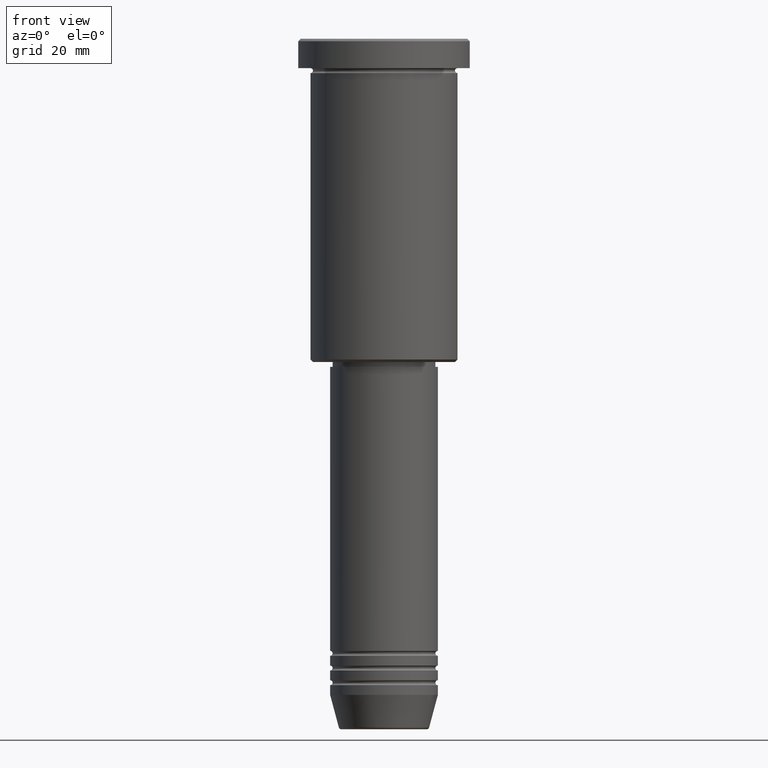
[diagram: clean part render]
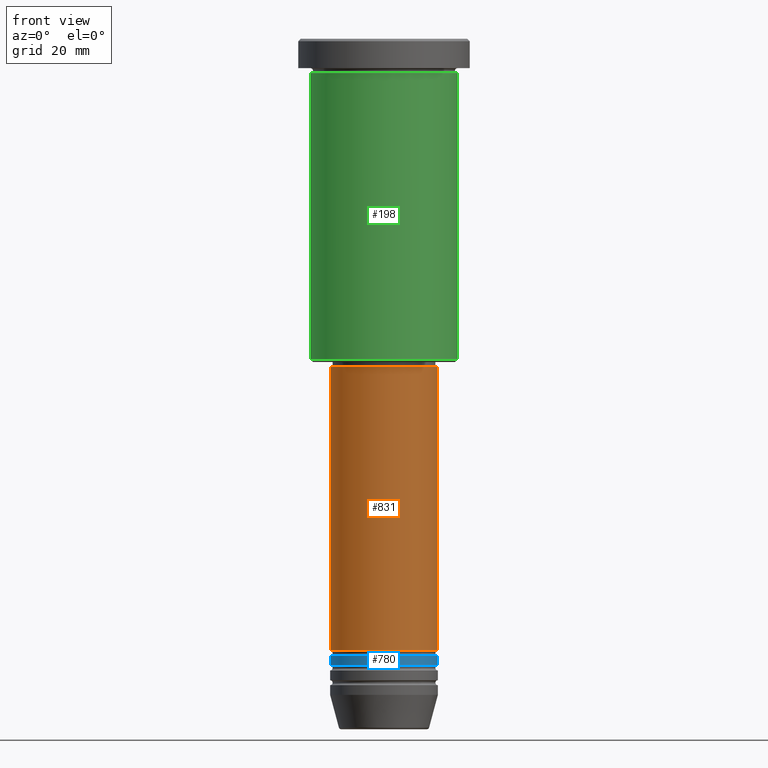
[diagram: same view with three faces highlighted in distinct colors, each labeled with its STEP entity id]
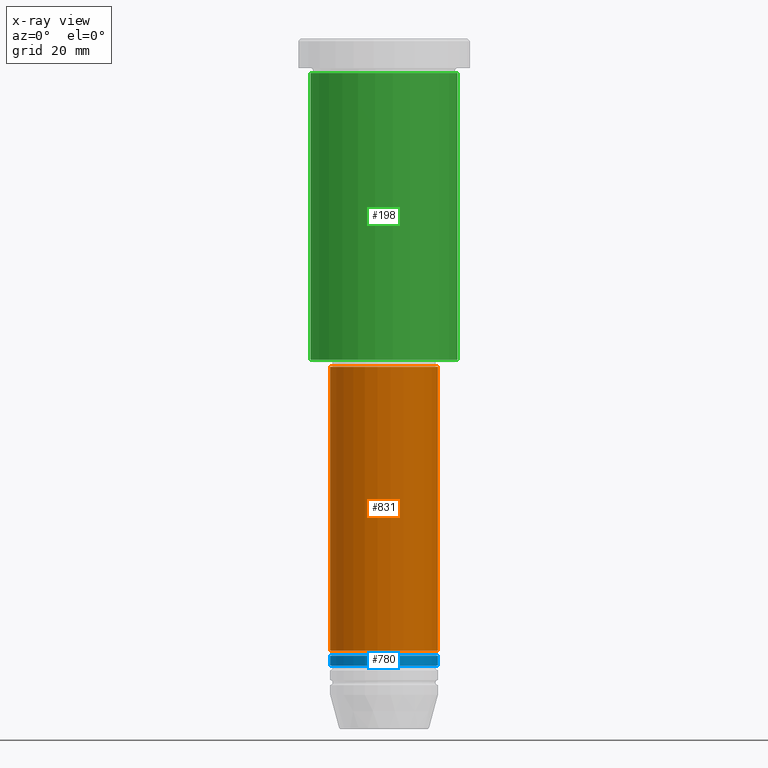
[diagram: x-ray of the same camera — body ghosted, the three highlighted faces saturated]
A machine part, front view with three faces highlighted in distinct colors.
The next image is the same camera in x-ray (body ghosted, the three faces saturated) — at least one of them is partly hidden behind the body in this view.
Their STEP definitions:

[orange] entity #831 — the highlighted cylindrical surface (partial cylindrical patch) has radius 11 mm, axis along (-0, -0, 1).
#15 = EDGE_CURVE ( 'NONE', #93, #61, #757, .T. ) ;
#61 = VERTEX_POINT ( 'NONE', #762 ) ;
#93 = VERTEX_POINT ( 'NONE', #405 ) ;
#100 = FACE_OUTER_BOUND ( 'NONE', #928, .T. ) ;
#154 = ORIENTED_EDGE ( 'NONE', *, *, #584, .F. ) ;
#174 = ORIENTED_EDGE ( 'NONE', *, *, #926, .F. ) ;
#196 = DIRECTION ( 'NONE',  ( 1.000000000000000000, 0.000000000000000000, 0.000000000000000000 ) ) ;
#200 = AXIS2_PLACEMENT_3D ( 'NONE', #744, #291, #730 ) ;
#202 = CARTESIAN_POINT ( 'NONE',  ( 0.000000000000000000, 0.000000000000000000, -67.00000000000000000 ) ) ;
#212 = DIRECTION ( 'NONE',  ( -0.000000000000000000, -0.000000000000000000, 1.000000000000000000 ) ) ;
#225 = VECTOR ( 'NONE', #424, 1000.000000000000000 ) ;
#240 = CIRCLE ( 'NONE', #615, 11.00000000000000000 ) ;
#291 = DIRECTION ( 'NONE',  ( -0.000000000000000000, -0.000000000000000000, 1.000000000000000000 ) ) ;
#300 = CIRCLE ( 'NONE', #482, 11.00000000000000000 ) ;
#327 = VERTEX_POINT ( 'NONE', #395 ) ;
#395 = CARTESIAN_POINT ( 'NONE',  ( -11.00000000000000000, 1.347111479062088405E-15, -67.00000000000000000 ) ) ;
#405 = CARTESIAN_POINT ( 'NONE',  ( 11.00000000000000000, 0.000000000000000000, -124.9999999999999716 ) ) ;
#424 = DIRECTION ( 'NONE',  ( -0.000000000000000000, -0.000000000000000000, 1.000000000000000000 ) ) ;
#482 = AXIS2_PLACEMENT_3D ( 'NONE', #894, #1173, #1179 ) ;
#544 = CARTESIAN_POINT ( 'NONE',  ( 11.00000000000000000, 0.000000000000000000, 0.000000000000000000 ) ) ;
#584 = EDGE_CURVE ( 'NONE', #796, #327, #969, .T. ) ;
#615 = AXIS2_PLACEMENT_3D ( 'NONE', #202, #1006, #196 ) ;
#721 = ORIENTED_EDGE ( 'NONE', *, *, #15, .T. ) ;
#730 = DIRECTION ( 'NONE',  ( 1.000000000000000000, 0.000000000000000000, 0.000000000000000000 ) ) ;
#744 = CARTESIAN_POINT ( 'NONE',  ( 0.000000000000000000, 0.000000000000000000, 0.000000000000000000 ) ) ;
#757 = LINE ( 'NONE', #544, #1035 ) ;
#762 = CARTESIAN_POINT ( 'NONE',  ( 11.00000000000000000, 0.000000000000000000, -67.00000000000000000 ) ) ;
#796 = VERTEX_POINT ( 'NONE', #895 ) ;
#831 = ADVANCED_FACE ( 'NONE', ( #100 ), #932, .T. ) ;
#839 = ORIENTED_EDGE ( 'NONE', *, *, #1151, .T. ) ;
#894 = CARTESIAN_POINT ( 'NONE',  ( 0.000000000000000000, 0.000000000000000000, -124.9999999999999716 ) ) ;
#895 = CARTESIAN_POINT ( 'NONE',  ( -11.00000000000000000, 1.347111479062088405E-15, -124.9999999999999716 ) ) ;
#926 = EDGE_CURVE ( 'NONE', #327, #61, #240, .T. ) ;
#928 = EDGE_LOOP ( 'NONE', ( #154, #839, #721, #174 ) ) ;
#932 = CYLINDRICAL_SURFACE ( 'NONE', #200, 11.00000000000000000 ) ;
#969 = LINE ( 'NONE', #1148, #225 ) ;
#1006 = DIRECTION ( 'NONE',  ( -0.000000000000000000, -0.000000000000000000, 1.000000000000000000 ) ) ;
#1035 = VECTOR ( 'NONE', #212, 1000.000000000000000 ) ;
#1148 = CARTESIAN_POINT ( 'NONE',  ( -11.00000000000000000, 1.347111479062088405E-15, 0.000000000000000000 ) ) ;
#1151 = EDGE_CURVE ( 'NONE', #796, #93, #300, .T. ) ;
#1173 = DIRECTION ( 'NONE',  ( -0.000000000000000000, -0.000000000000000000, 1.000000000000000000 ) ) ;
#1179 = DIRECTION ( 'NONE',  ( 1.000000000000000000, 0.000000000000000000, 0.000000000000000000 ) ) ;

[blue] entity #780 — the highlighted cylindrical surface (partial cylindrical patch) has radius 11 mm, axis along (-0, -0, 1).
#9 = CIRCLE ( 'NONE', #1172, 11.00000000000000000 ) ;
#38 = VERTEX_POINT ( 'NONE', #933 ) ;
#46 = EDGE_CURVE ( 'NONE', #223, #38, #1094, .T. ) ;
#96 = CYLINDRICAL_SURFACE ( 'NONE', #1013, 11.00000000000000000 ) ;
#150 = CIRCLE ( 'NONE', #304, 11.00000000000000000 ) ;
#161 = EDGE_CURVE ( 'NONE', #38, #666, #9, .T. ) ;
#179 = FACE_OUTER_BOUND ( 'NONE', #217, .T. ) ;
#191 = DIRECTION ( 'NONE',  ( -0.000000000000000000, -0.000000000000000000, 1.000000000000000000 ) ) ;
#217 = EDGE_LOOP ( 'NONE', ( #471, #233, #272, #475 ) ) ;
#223 = VERTEX_POINT ( 'NONE', #251 ) ;
#233 = ORIENTED_EDGE ( 'NONE', *, *, #893, .T. ) ;
#251 = CARTESIAN_POINT ( 'NONE',  ( -11.00000000000000000, 1.347111479062088405E-15, -127.9999999999999716 ) ) ;
#272 = ORIENTED_EDGE ( 'NONE', *, *, #588, .T. ) ;
#281 = VECTOR ( 'NONE', #191, 1000.000000000000000 ) ;
#301 = DIRECTION ( 'NONE',  ( -0.000000000000000000, -0.000000000000000000, 1.000000000000000000 ) ) ;
#304 = AXIS2_PLACEMENT_3D ( 'NONE', #552, #301, #1098 ) ;
#345 = CARTESIAN_POINT ( 'NONE',  ( 11.00000000000000000, 0.000000000000000000, -127.9999999999999716 ) ) ;
#391 = VECTOR ( 'NONE', #1047, 1000.000000000000000 ) ;
#418 = CARTESIAN_POINT ( 'NONE',  ( 11.00000000000000000, 0.000000000000000000, 0.000000000000000000 ) ) ;
#453 = CARTESIAN_POINT ( 'NONE',  ( 0.000000000000000000, 0.000000000000000000, 0.000000000000000000 ) ) ;
#471 = ORIENTED_EDGE ( 'NONE', *, *, #46, .F. ) ;
#475 = ORIENTED_EDGE ( 'NONE', *, *, #161, .F. ) ;
#487 = DIRECTION ( 'NONE',  ( 1.000000000000000000, 0.000000000000000000, 0.000000000000000000 ) ) ;
#552 = CARTESIAN_POINT ( 'NONE',  ( 0.000000000000000000, 0.000000000000000000, -127.9999999999999716 ) ) ;
#588 = EDGE_CURVE ( 'NONE', #699, #666, #698, .T. ) ;
#616 = DIRECTION ( 'NONE',  ( 1.000000000000000000, 0.000000000000000000, 0.000000000000000000 ) ) ;
#666 = VERTEX_POINT ( 'NONE', #986 ) ;
#698 = LINE ( 'NONE', #418, #391 ) ;
#699 = VERTEX_POINT ( 'NONE', #345 ) ;
#780 = ADVANCED_FACE ( 'NONE', ( #179 ), #96, .T. ) ;
#795 = DIRECTION ( 'NONE',  ( -0.000000000000000000, -0.000000000000000000, 1.000000000000000000 ) ) ;
#893 = EDGE_CURVE ( 'NONE', #223, #699, #150, .T. ) ;
#933 = CARTESIAN_POINT ( 'NONE',  ( -11.00000000000000000, 1.347111479062088405E-15, -125.9999999999999716 ) ) ;
#938 = CARTESIAN_POINT ( 'NONE',  ( 0.000000000000000000, 0.000000000000000000, -125.9999999999999716 ) ) ;
#964 = DIRECTION ( 'NONE',  ( -0.000000000000000000, -0.000000000000000000, 1.000000000000000000 ) ) ;
#986 = CARTESIAN_POINT ( 'NONE',  ( 11.00000000000000000, 0.000000000000000000, -125.9999999999999716 ) ) ;
#1003 = CARTESIAN_POINT ( 'NONE',  ( -11.00000000000000000, 1.347111479062088405E-15, 0.000000000000000000 ) ) ;
#1013 = AXIS2_PLACEMENT_3D ( 'NONE', #453, #795, #616 ) ;
#1047 = DIRECTION ( 'NONE',  ( -0.000000000000000000, -0.000000000000000000, 1.000000000000000000 ) ) ;
#1094 = LINE ( 'NONE', #1003, #281 ) ;
#1098 = DIRECTION ( 'NONE',  ( 1.000000000000000000, 0.000000000000000000, 0.000000000000000000 ) ) ;
#1172 = AXIS2_PLACEMENT_3D ( 'NONE', #938, #964, #487 ) ;

[green] entity #198 — the highlighted cylindrical surface (partial cylindrical patch) has radius 15 mm, axis along (-0, -0, 1).
#37 = CARTESIAN_POINT ( 'NONE',  ( 0.000000000000000000, 0.000000000000000000, -65.50000000000000000 ) ) ;
#42 = VERTEX_POINT ( 'NONE', #549 ) ;
#72 = ORIENTED_EDGE ( 'NONE', *, *, #141, .F. ) ;
#135 = FACE_OUTER_BOUND ( 'NONE', #342, .T. ) ;
#141 = EDGE_CURVE ( 'NONE', #242, #1158, #591, .T. ) ;
#142 = DIRECTION ( 'NONE',  ( 1.000000000000000000, 0.000000000000000000, 0.000000000000000000 ) ) ;
#198 = ADVANCED_FACE ( 'NONE', ( #135 ), #961, .T. ) ;
#221 = CARTESIAN_POINT ( 'NONE',  ( -15.00000000000000000, 1.836970198721029589E-15, 0.000000000000000000 ) ) ;
#238 = DIRECTION ( 'NONE',  ( -0.000000000000000000, -0.000000000000000000, 1.000000000000000000 ) ) ;
#239 = CARTESIAN_POINT ( 'NONE',  ( 15.00000000000000000, 0.000000000000000000, -65.50000000000000000 ) ) ;
#242 = VERTEX_POINT ( 'NONE', #724 ) ;
#342 = EDGE_LOOP ( 'NONE', ( #72, #772, #1163, #413 ) ) ;
#370 = AXIS2_PLACEMENT_3D ( 'NONE', #861, #238, #142 ) ;
#406 = VECTOR ( 'NONE', #446, 1000.000000000000000 ) ;
#413 = ORIENTED_EDGE ( 'NONE', *, *, #668, .F. ) ;
#435 = EDGE_CURVE ( 'NONE', #242, #992, #736, .T. ) ;
#446 = DIRECTION ( 'NONE',  ( -0.000000000000000000, -0.000000000000000000, 1.000000000000000000 ) ) ;
#491 = DIRECTION ( 'NONE',  ( -0.000000000000000000, -0.000000000000000000, 1.000000000000000000 ) ) ;
#503 = VECTOR ( 'NONE', #491, 1000.000000000000000 ) ;
#508 = CIRCLE ( 'NONE', #578, 15.00000000000000000 ) ;
#549 = CARTESIAN_POINT ( 'NONE',  ( 15.00000000000000000, 0.000000000000000000, -6.999999999999995559 ) ) ;
#578 = AXIS2_PLACEMENT_3D ( 'NONE', #817, #1157, #1176 ) ;
#591 = LINE ( 'NONE', #221, #503 ) ;
#668 = EDGE_CURVE ( 'NONE', #1158, #42, #508, .T. ) ;
#683 = DIRECTION ( 'NONE',  ( -0.000000000000000000, -0.000000000000000000, 1.000000000000000000 ) ) ;
#724 = CARTESIAN_POINT ( 'NONE',  ( -15.00000000000000000, 1.836970198721029589E-15, -65.50000000000000000 ) ) ;
#736 = CIRCLE ( 'NONE', #1133, 15.00000000000000000 ) ;
#745 = EDGE_CURVE ( 'NONE', #992, #42, #991, .T. ) ;
#772 = ORIENTED_EDGE ( 'NONE', *, *, #435, .T. ) ;
#817 = CARTESIAN_POINT ( 'NONE',  ( 0.000000000000000000, 0.000000000000000000, -6.999999999999995559 ) ) ;
#861 = CARTESIAN_POINT ( 'NONE',  ( 0.000000000000000000, 0.000000000000000000, 0.000000000000000000 ) ) ;
#887 = CARTESIAN_POINT ( 'NONE',  ( -15.00000000000000000, 1.836970198721029589E-15, -6.999999999999995559 ) ) ;
#961 = CYLINDRICAL_SURFACE ( 'NONE', #370, 15.00000000000000000 ) ;
#991 = LINE ( 'NONE', #997, #406 ) ;
#992 = VERTEX_POINT ( 'NONE', #239 ) ;
#997 = CARTESIAN_POINT ( 'NONE',  ( 15.00000000000000000, 0.000000000000000000, 0.000000000000000000 ) ) ;
#1033 = DIRECTION ( 'NONE',  ( -1.000000000000000000, 0.000000000000000000, 0.000000000000000000 ) ) ;
#1133 = AXIS2_PLACEMENT_3D ( 'NONE', #37, #683, #1033 ) ;
#1157 = DIRECTION ( 'NONE',  ( -0.000000000000000000, -0.000000000000000000, 1.000000000000000000 ) ) ;
#1158 = VERTEX_POINT ( 'NONE', #887 ) ;
#1163 = ORIENTED_EDGE ( 'NONE', *, *, #745, .T. ) ;
#1176 = DIRECTION ( 'NONE',  ( 1.000000000000000000, 0.000000000000000000, 0.000000000000000000 ) ) ;